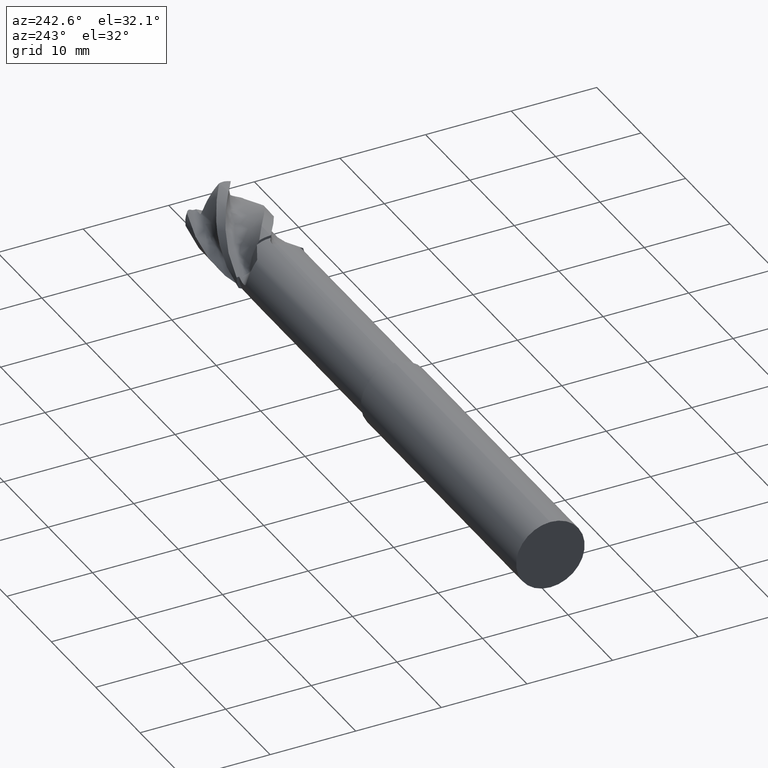
[diagram: clean part render]
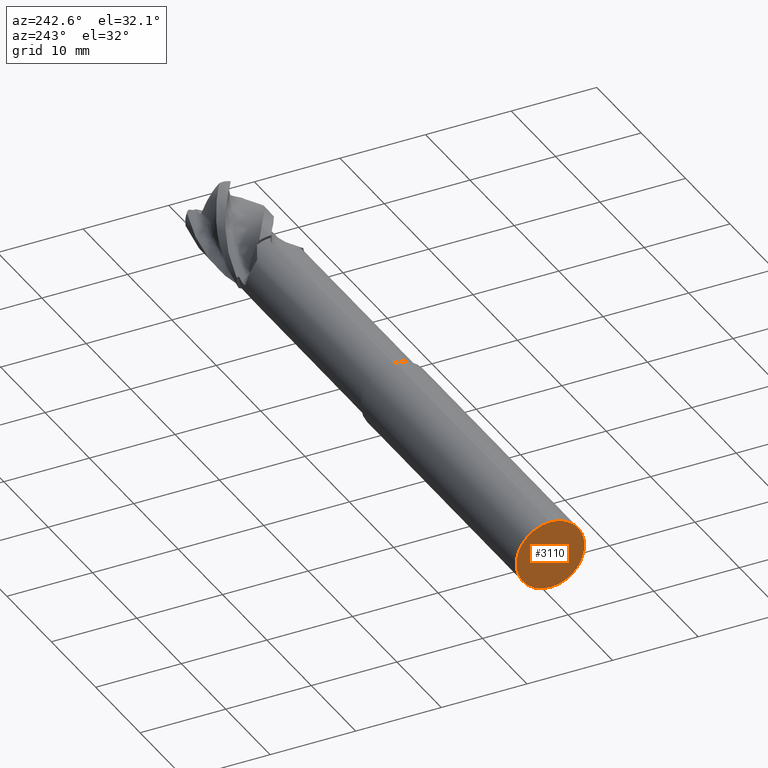
[diagram: same view with one face highlighted and labeled with its STEP entity id]
A machine part, auxiliary view. The second image highlights one B-rep face of the part: STEP entity #3110.
In plain terms, the highlighted planar face has unit normal (1, 0, 0).
Its self-contained STEP definition (entity closure, byte-faithful):
#2126 = EDGE_LOOP ( 'NONE', ( #4035, #4160 ) ) ;
#2271 = AXIS2_PLACEMENT_3D ( 'NONE', #4764, #4767, #4768 ) ;
#2299 = EDGE_CURVE ( 'NONE', #3151, #3142, #4171, .T. ) ;
#2323 = EDGE_CURVE ( 'NONE', #3142, #3151, #4087, .T. ) ;
#2341 = AXIS2_PLACEMENT_3D ( 'NONE', #3620, #3589, #3585 ) ;
#2423 = AXIS2_PLACEMENT_3D ( 'NONE', #3475, #3463, #3462 ) ;
#3110 = ADVANCED_FACE ( 'NONE', ( #4280 ), #4765, .F. ) ;
#3142 = VERTEX_POINT ( 'NONE', #4840 ) ;
#3151 = VERTEX_POINT ( 'NONE', #4826 ) ;
#3462 = DIRECTION ( 'NONE',  ( 0.0000000000000000000, 0.0000000000000000000, 1.000000000000000000 ) ) ;
#3463 = DIRECTION ( 'NONE',  ( -1.000000000000000000, -0.0000000000000000000, -0.0000000000000000000 ) ) ;
#3475 = CARTESIAN_POINT ( 'NONE',  ( -36.00000000000000000, 0.0000000000000000000, 0.0000000000000000000 ) ) ;
#3585 = DIRECTION ( 'NONE',  ( 0.0000000000000000000, 0.0000000000000000000, 1.000000000000000000 ) ) ;
#3589 = DIRECTION ( 'NONE',  ( -1.000000000000000000, -0.0000000000000000000, -0.0000000000000000000 ) ) ;
#3620 = CARTESIAN_POINT ( 'NONE',  ( -36.00000000000000000, 0.0000000000000000000, 0.0000000000000000000 ) ) ;
#4035 = ORIENTED_EDGE ( 'NONE', *, *, #2323, .T. ) ;
#4087 = CIRCLE ( 'NONE', #2423, 4.000000000000005300 ) ;
#4160 = ORIENTED_EDGE ( 'NONE', *, *, #2299, .T. ) ;
#4171 = CIRCLE ( 'NONE', #2341, 4.000000000000005300 ) ;
#4280 = FACE_OUTER_BOUND ( 'NONE', #2126, .T. ) ;
#4764 = CARTESIAN_POINT ( 'NONE',  ( -36.00000000000000000, 4.000000000000005300, 0.0000000000000000000 ) ) ;
#4765 = PLANE ( 'NONE',  #2271 ) ;
#4767 = DIRECTION ( 'NONE',  ( 1.000000000000000000, 0.0000000000000000000, 0.0000000000000000000 ) ) ;
#4768 = DIRECTION ( 'NONE',  ( 0.0000000000000000000, 0.0000000000000000000, -1.000000000000000000 ) ) ;
#4826 = CARTESIAN_POINT ( 'NONE',  ( -36.00000000000000000, 4.898587196589420700E-016, -4.000000000000005300 ) ) ;
#4840 = CARTESIAN_POINT ( 'NONE',  ( -36.00000000000000000, 0.0000000000000000000, 4.000000000000005300 ) ) ;